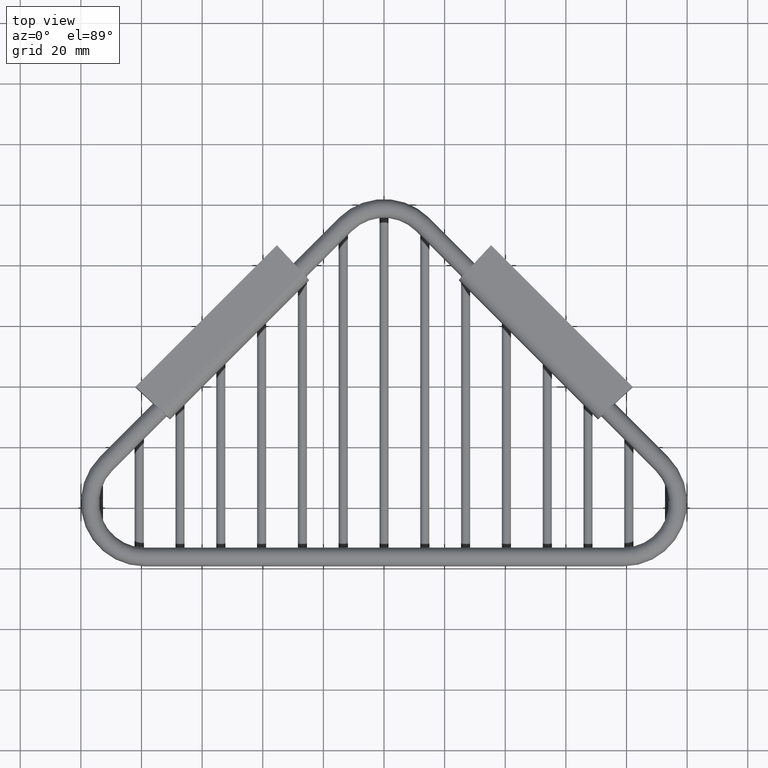
[diagram: clean part render]
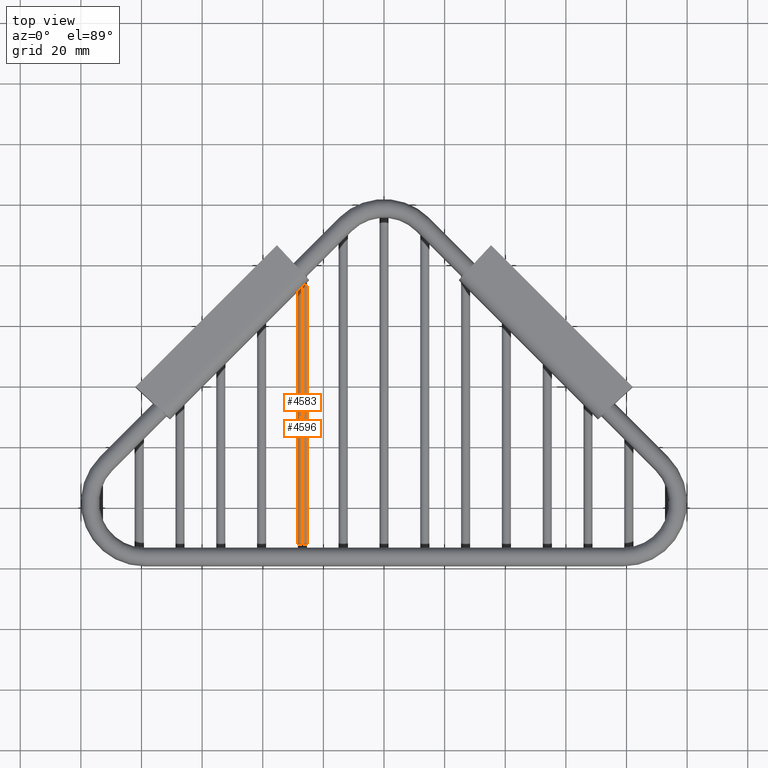
[diagram: same view with one multi-face feature highlighted, each face labeled with its STEP entity id]
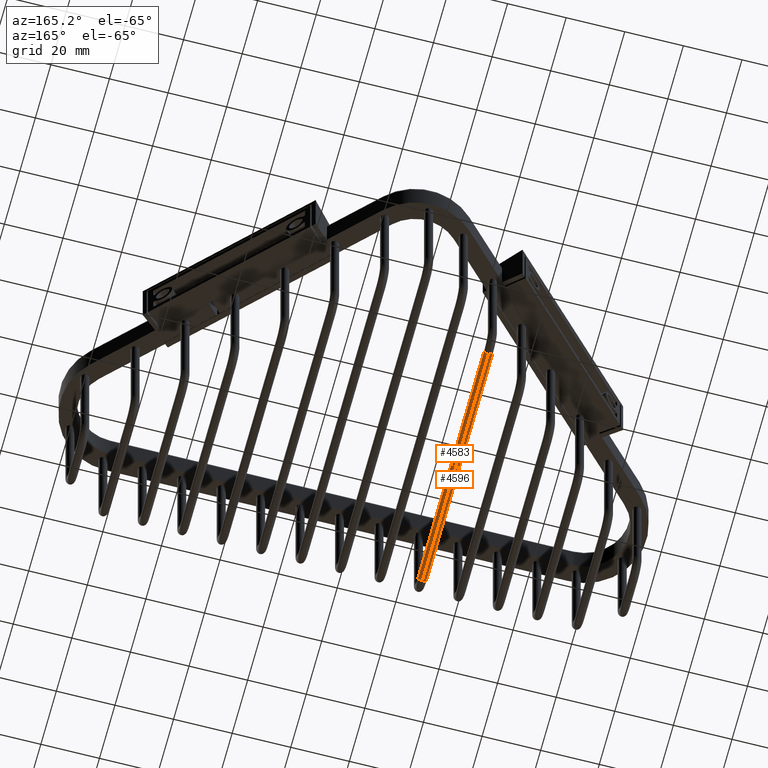
[diagram: same view with one multi-face feature highlighted, each face labeled with its STEP entity id]
A machine part, top view. The highlighted faces form ONE feature: a constant-radius fillet chain: 2 tangent blend faces with common blend radius 1.4986 mm. The faces share edges in the B-rep.
A second angle (auxiliary view) of the same feature is appended — it is thin or edge-on in the first view.
Their STEP definitions:
[1] entity #4596 (Cylinder):
#1085=DIRECTION('',(0.E0,1.E0,0.E0));
#1086=VECTOR('',#1085,3.368E0);
#1087=CARTESIAN_POINT('',(-1.06E0,3.15E-1,-1.91E0));
#1088=LINE('',#1087,#1086);
#1092=CARTESIAN_POINT('',(-1.06E0,3.15E-1,-1.969E0));
#1093=DIRECTION('',(0.E0,1.E0,0.E0));
#1094=DIRECTION('',(0.E0,0.E0,-1.E0));
#1095=AXIS2_PLACEMENT_3D('',#1092,#1093,#1094);
#1100=DIRECTION('',(0.E0,1.E0,0.E0));
#1101=VECTOR('',#1100,3.368E0);
#1102=CARTESIAN_POINT('',(-1.06E0,3.15E-1,-2.028E0));
#1103=LINE('',#1102,#1101);
#1107=CARTESIAN_POINT('',(-1.06E0,3.683E0,-1.969E0));
#1108=DIRECTION('',(0.E0,1.E0,0.E0));
#1109=DIRECTION('',(0.E0,0.E0,-1.E0));
#1110=AXIS2_PLACEMENT_3D('',#1107,#1108,#1109);
#3601=CARTESIAN_POINT('',(-1.06E0,3.15E-1,-1.91E0));
#3602=CARTESIAN_POINT('',(-1.06E0,3.15E-1,-2.028E0));
#3603=VERTEX_POINT('',#3601);
#3604=VERTEX_POINT('',#3602);
#3605=CARTESIAN_POINT('',(-1.06E0,3.683E0,-1.91E0));
#3606=CARTESIAN_POINT('',(-1.06E0,3.683E0,-2.028E0));
#3607=VERTEX_POINT('',#3605);
#3608=VERTEX_POINT('',#3606);
#4584=CARTESIAN_POINT('',(-1.06E0,3.15E-1,-1.969E0));
#4585=DIRECTION('',(0.E0,1.E0,0.E0));
#4586=DIRECTION('',(0.E0,0.E0,1.E0));
#4587=AXIS2_PLACEMENT_3D('',#4584,#4585,#4586);
#4588=CYLINDRICAL_SURFACE('',#4587,5.9E-2);
#4589=ORIENTED_EDGE('',*,*,#4549,.F.);
#4590=ORIENTED_EDGE('',*,*,#4579,.T.);
#4592=ORIENTED_EDGE('',*,*,#4591,.T.);
#4593=ORIENTED_EDGE('',*,*,#4575,.F.);
#4594=EDGE_LOOP('',(#4589,#4590,#4592,#4593));
#4595=FACE_OUTER_BOUND('',#4594,.F.);
#1096=CIRCLE('',#1095,5.9E-2);
#1111=CIRCLE('',#1110,5.9E-2);
#4549=EDGE_CURVE('',#3604,#3603,#1096,.T.);
#4575=EDGE_CURVE('',#3603,#3607,#1088,.T.);
#4579=EDGE_CURVE('',#3604,#3608,#1103,.T.);
#4591=EDGE_CURVE('',#3608,#3607,#1111,.T.);
#4596=ADVANCED_FACE('',(#4595),#4588,.T.);
[2] entity #4583 (Cylinder):
#1077=CARTESIAN_POINT('',(-1.06E0,3.15E-1,-1.969E0));
#1078=DIRECTION('',(0.E0,1.E0,0.E0));
#1079=DIRECTION('',(0.E0,0.E0,1.E0));
#1080=AXIS2_PLACEMENT_3D('',#1077,#1078,#1079);
#1085=DIRECTION('',(0.E0,1.E0,0.E0));
#1086=VECTOR('',#1085,3.368E0);
#1087=CARTESIAN_POINT('',(-1.06E0,3.15E-1,-1.91E0));
#1088=LINE('',#1087,#1086);
#1100=DIRECTION('',(0.E0,1.E0,0.E0));
#1101=VECTOR('',#1100,3.368E0);
#1102=CARTESIAN_POINT('',(-1.06E0,3.15E-1,-2.028E0));
#1103=LINE('',#1102,#1101);
#1123=CARTESIAN_POINT('',(-1.06E0,3.683E0,-1.969E0));
#1124=DIRECTION('',(0.E0,1.E0,0.E0));
#1125=DIRECTION('',(0.E0,0.E0,1.E0));
#1126=AXIS2_PLACEMENT_3D('',#1123,#1124,#1125);
#3601=CARTESIAN_POINT('',(-1.06E0,3.15E-1,-1.91E0));
#3602=CARTESIAN_POINT('',(-1.06E0,3.15E-1,-2.028E0));
#3603=VERTEX_POINT('',#3601);
#3604=VERTEX_POINT('',#3602);
#3605=CARTESIAN_POINT('',(-1.06E0,3.683E0,-1.91E0));
#3606=CARTESIAN_POINT('',(-1.06E0,3.683E0,-2.028E0));
#3607=VERTEX_POINT('',#3605);
#3608=VERTEX_POINT('',#3606);
#4569=CARTESIAN_POINT('',(-1.06E0,3.15E-1,-1.969E0));
#4570=DIRECTION('',(0.E0,1.E0,0.E0));
#4571=DIRECTION('',(0.E0,0.E0,1.E0));
#4572=AXIS2_PLACEMENT_3D('',#4569,#4570,#4571);
#4573=CYLINDRICAL_SURFACE('',#4572,5.9E-2);
#4574=ORIENTED_EDGE('',*,*,#4563,.F.);
#4576=ORIENTED_EDGE('',*,*,#4575,.T.);
#4578=ORIENTED_EDGE('',*,*,#4577,.T.);
#4580=ORIENTED_EDGE('',*,*,#4579,.F.);
#4581=EDGE_LOOP('',(#4574,#4576,#4578,#4580));
#4582=FACE_OUTER_BOUND('',#4581,.F.);
#1081=CIRCLE('',#1080,5.9E-2);
#1127=CIRCLE('',#1126,5.9E-2);
#4563=EDGE_CURVE('',#3603,#3604,#1081,.T.);
#4575=EDGE_CURVE('',#3603,#3607,#1088,.T.);
#4577=EDGE_CURVE('',#3607,#3608,#1127,.T.);
#4579=EDGE_CURVE('',#3604,#3608,#1103,.T.);
#4583=ADVANCED_FACE('',(#4582),#4573,.T.);